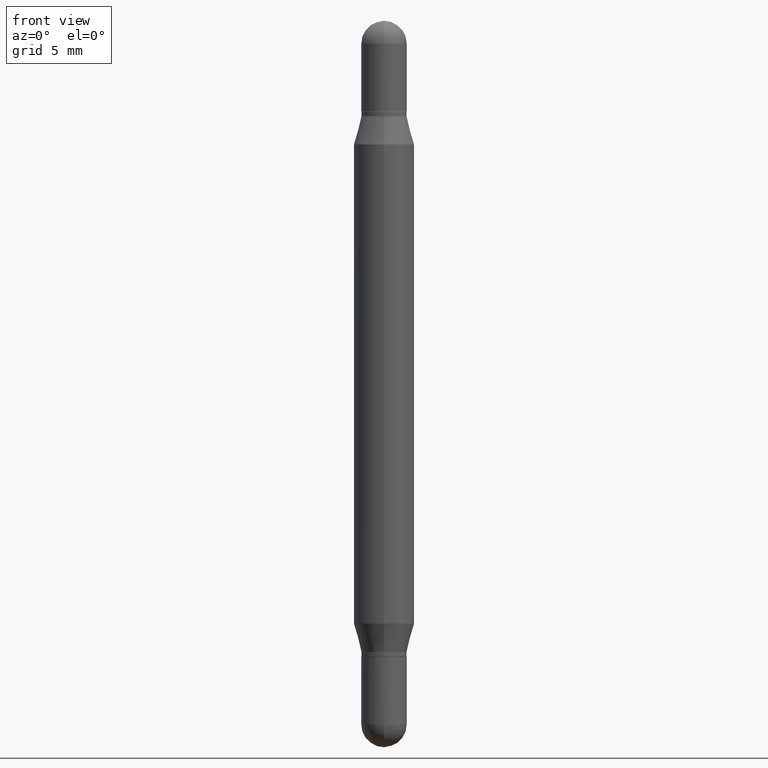
[diagram: clean part render]
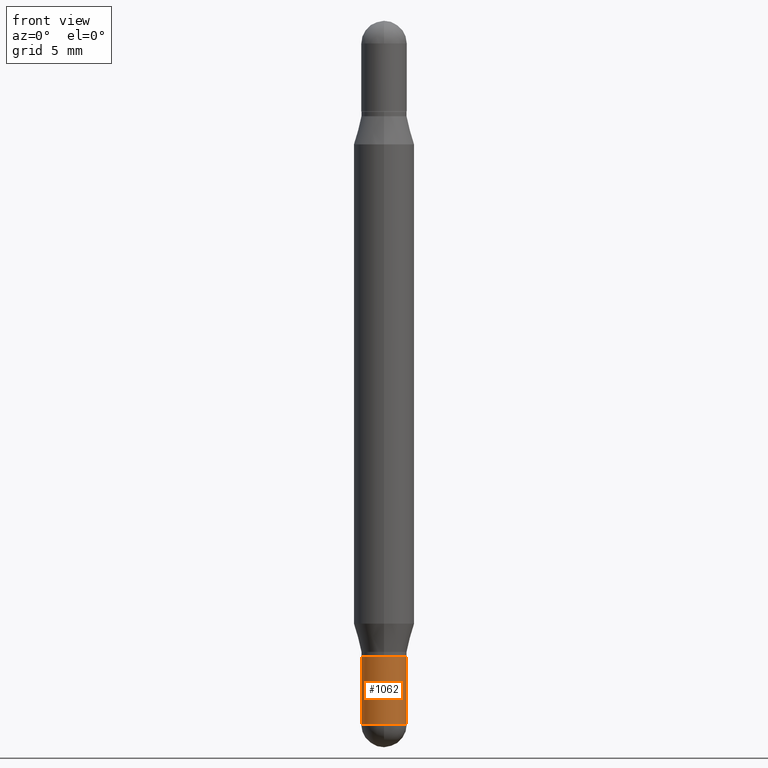
[diagram: same view with one face highlighted and labeled with its STEP entity id]
A machine part, front view. The second image highlights one B-rep face of the part: STEP entity #1062.
In plain terms, the highlighted cylindrical surface (edge-blend (fillet) strip) has radius 1.1913 mm, axis along (-0, 0, 1).
Its self-contained STEP definition (entity closure, byte-faithful):
#27 = VECTOR ( 'NONE', #64, 39.37007874015748143 ) ;
#43 = DIRECTION ( 'NONE',  ( -2.445468806185136597E-29, 3.491481338843145583E-15, 1.000000000000000000 ) ) ;
#45 = CIRCLE ( 'NONE', #459, 0.04689999999999999725 ) ;
#56 = CARTESIAN_POINT ( 'NONE',  ( 3.553510722267622201E-29, -5.073471533472974042E-15, -1.453099999999999836 ) ) ;
#64 = DIRECTION ( 'NONE',  ( -2.445468806185136877E-29, 3.491481338843145188E-15, 1.000000000000000000 ) ) ;
#66 = EDGE_CURVE ( 'NONE', #212, #839, #540, .T. ) ;
#68 = CARTESIAN_POINT ( 'NONE',  ( -0.04689999999999999725, -4.495648722615525747E-15, -1.313000000000000167 ) ) ;
#212 = VERTEX_POINT ( 'NONE', #420 ) ;
#224 = CARTESIAN_POINT ( 'NONE',  ( -0.04689999999999999725, 3.332445430714869676E-16, -2.306980557329550952E-30 ) ) ;
#242 = CARTESIAN_POINT ( 'NONE',  ( 0.04689999999999999725, -4.911815947484537290E-15, -1.313000000000000167 ) ) ;
#250 = ORIENTED_EDGE ( 'NONE', *, *, #763, .F. ) ;
#284 = CIRCLE ( 'NONE', #608, 0.04689999999999999725 ) ;
#292 = CARTESIAN_POINT ( 'NONE',  ( 0.04689999999999999725, -3.275009495834859024E-16, 2.286926907848294038E-30 ) ) ;
#362 = DIRECTION ( 'NONE',  ( -2.445468806185136597E-29, 3.491481338843145583E-15, 1.000000000000000000 ) ) ;
#406 = DIRECTION ( 'NONE',  ( -2.445468806185136597E-29, 3.491481338843145583E-15, 1.000000000000000000 ) ) ;
#410 = ORIENTED_EDGE ( 'NONE', *, *, #795, .F. ) ;
#420 = CARTESIAN_POINT ( 'NONE',  ( 0.04689999999999999725, -5.156394215270499012E-15, -1.453099999999999836 ) ) ;
#459 = AXIS2_PLACEMENT_3D ( 'NONE', #668, #645, #987 ) ;
#460 = FACE_OUTER_BOUND ( 'NONE', #1104, .T. ) ;
#529 = CARTESIAN_POINT ( 'NONE',  ( 0.000000000000000000, 0.000000000000000000, 0.000000000000000000 ) ) ;
#540 = LINE ( 'NONE', #292, #1118 ) ;
#573 = CARTESIAN_POINT ( 'NONE',  ( 3.553510722267622201E-29, -5.073471533472974042E-15, -1.453099999999999836 ) ) ;
#598 = ORIENTED_EDGE ( 'NONE', *, *, #813, .T. ) ;
#608 = AXIS2_PLACEMENT_3D ( 'NONE', #573, #406, #832 ) ;
#612 = EDGE_CURVE ( 'NONE', #985, #212, #284, .T. ) ;
#645 = DIRECTION ( 'NONE',  ( -2.445468806185136597E-29, 3.491481338843145583E-15, 1.000000000000000000 ) ) ;
#668 = CARTESIAN_POINT ( 'NONE',  ( 3.210900542521084585E-29, -4.584314997901050598E-15, -1.313000000000000167 ) ) ;
#672 = VERTEX_POINT ( 'NONE', #68 ) ;
#697 = CIRCLE ( 'NONE', #1094, 0.04689999999999999725 ) ;
#716 = CARTESIAN_POINT ( 'NONE',  ( -0.04689999999999999725, -4.495648722615525747E-15, -1.453099999999999836 ) ) ;
#722 = CYLINDRICAL_SURFACE ( 'NONE', #773, 0.04689999999999999725 ) ;
#726 = DIRECTION ( 'NONE',  ( -2.445468806185136877E-29, 3.491481338843145188E-15, 1.000000000000000000 ) ) ;
#746 = DIRECTION ( 'NONE',  ( 1.000000000000000000, -6.982962677686277755E-15, 0.000000000000000000 ) ) ;
#763 = EDGE_CURVE ( 'NONE', #672, #839, #45, .T. ) ;
#765 = CARTESIAN_POINT ( 'NONE',  ( -3.332445430714514196E-16, -0.04690000000000506958, -1.453099999999999614 ) ) ;
#773 = AXIS2_PLACEMENT_3D ( 'NONE', #529, #362, #884 ) ;
#795 = EDGE_CURVE ( 'NONE', #999, #672, #1087, .T. ) ;
#813 = EDGE_CURVE ( 'NONE', #999, #985, #697, .T. ) ;
#832 = DIRECTION ( 'NONE',  ( 1.000000000000000000, -6.982962677686277755E-15, 0.000000000000000000 ) ) ;
#839 = VERTEX_POINT ( 'NONE', #242 ) ;
#860 = ORIENTED_EDGE ( 'NONE', *, *, #612, .T. ) ;
#879 = ORIENTED_EDGE ( 'NONE', *, *, #66, .T. ) ;
#884 = DIRECTION ( 'NONE',  ( 1.000000000000000000, -6.982962677686266711E-15, 4.876176775795936353E-29 ) ) ;
#985 = VERTEX_POINT ( 'NONE', #765 ) ;
#987 = DIRECTION ( 'NONE',  ( 1.000000000000000000, -6.982962677686277755E-15, 0.000000000000000000 ) ) ;
#999 = VERTEX_POINT ( 'NONE', #716 ) ;
#1062 = ADVANCED_FACE ( 'NONE', ( #460 ), #722, .T. ) ;
#1087 = LINE ( 'NONE', #224, #27 ) ;
#1094 = AXIS2_PLACEMENT_3D ( 'NONE', #56, #43, #746 ) ;
#1104 = EDGE_LOOP ( 'NONE', ( #410, #598, #860, #879, #250 ) ) ;
#1118 = VECTOR ( 'NONE', #726, 39.37007874015748143 ) ;